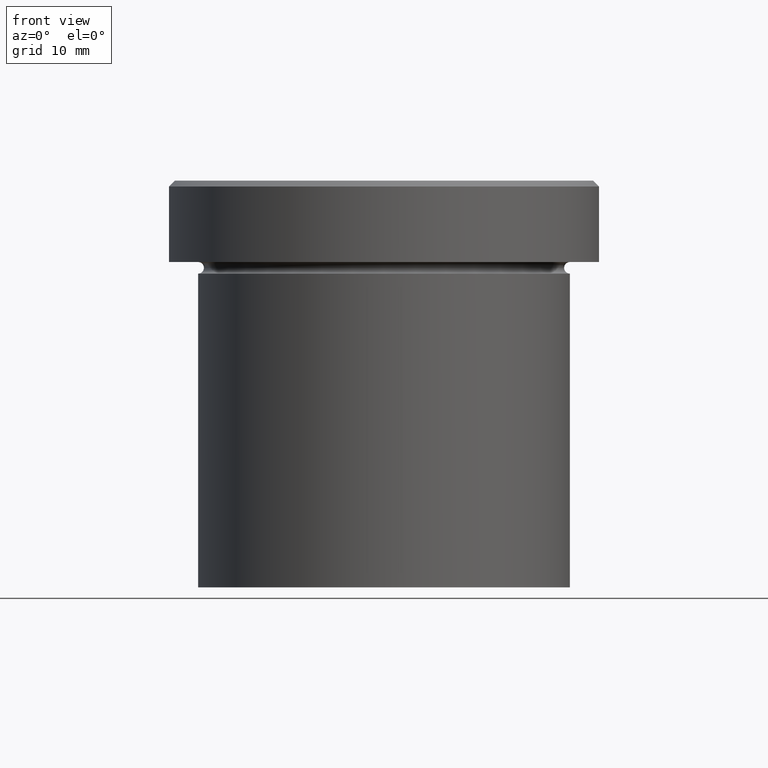
[diagram: clean part render]
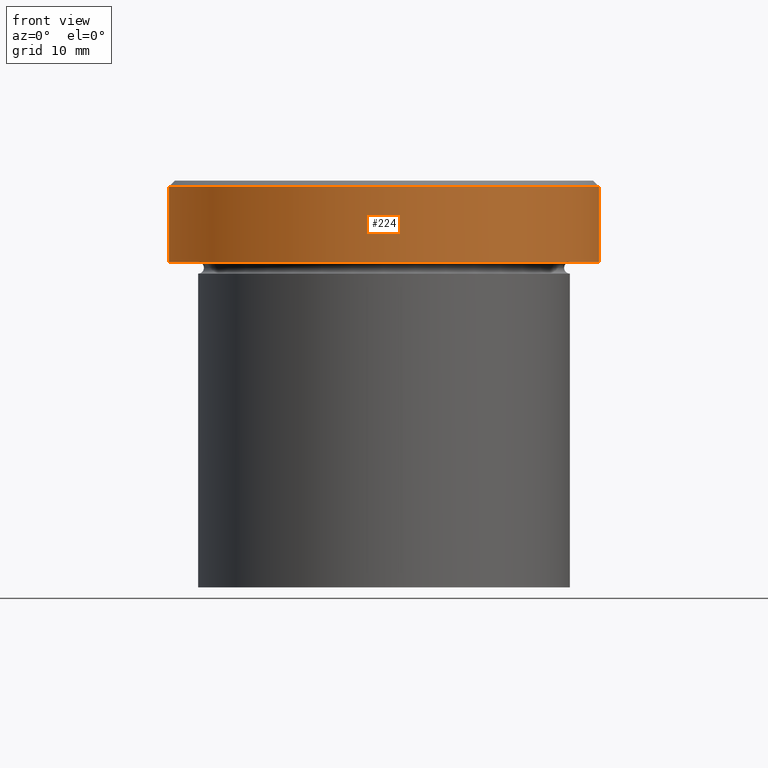
[diagram: same view with one face highlighted and labeled with its STEP entity id]
A machine part, front view. The second image highlights one B-rep face of the part: STEP entity #224.
In plain terms, the highlighted cylindrical surface (partial cylindrical patch) has radius 18.5 mm, axis along (-0, -0, 1).
Its self-contained STEP definition (entity closure, byte-faithful):
#8 = CARTESIAN_POINT ( 'NONE',  ( 18.50000000000000000, 0.000000000000000000, -0.4999999999999936162 ) ) ;
#13 = CIRCLE ( 'NONE', #188, 18.50000000000000000 ) ;
#15 = ORIENTED_EDGE ( 'NONE', *, *, #111, .F. ) ;
#18 = CARTESIAN_POINT ( 'NONE',  ( -18.50000000000000000, 2.265596578422603396E-15, -6.999999999999998224 ) ) ;
#28 = EDGE_CURVE ( 'NONE', #387, #161, #13, .T. ) ;
#38 = FACE_OUTER_BOUND ( 'NONE', #109, .T. ) ;
#55 = CARTESIAN_POINT ( 'NONE',  ( -18.50000000000000000, 2.265596578422603396E-15, 0.000000000000000000 ) ) ;
#67 = VECTOR ( 'NONE', #334, 1000.000000000000000 ) ;
#98 = DIRECTION ( 'NONE',  ( -0.000000000000000000, -0.000000000000000000, 1.000000000000000000 ) ) ;
#109 = EDGE_LOOP ( 'NONE', ( #15, #193, #394, #169 ) ) ;
#111 = EDGE_CURVE ( 'NONE', #139, #161, #114, .T. ) ;
#114 = LINE ( 'NONE', #55, #407 ) ;
#136 = AXIS2_PLACEMENT_3D ( 'NONE', #357, #98, #288 ) ;
#138 = LINE ( 'NONE', #302, #67 ) ;
#139 = VERTEX_POINT ( 'NONE', #18 ) ;
#155 = DIRECTION ( 'NONE',  ( 1.000000000000000000, 0.000000000000000000, 0.000000000000000000 ) ) ;
#159 = VERTEX_POINT ( 'NONE', #179 ) ;
#161 = VERTEX_POINT ( 'NONE', #379 ) ;
#169 = ORIENTED_EDGE ( 'NONE', *, *, #28, .T. ) ;
#178 = DIRECTION ( 'NONE',  ( -0.000000000000000000, -0.000000000000000000, 1.000000000000000000 ) ) ;
#179 = CARTESIAN_POINT ( 'NONE',  ( 18.50000000000000000, 0.000000000000000000, -6.999999999999998224 ) ) ;
#187 = EDGE_CURVE ( 'NONE', #139, #159, #392, .T. ) ;
#188 = AXIS2_PLACEMENT_3D ( 'NONE', #220, #280, #377 ) ;
#192 = DIRECTION ( 'NONE',  ( -0.000000000000000000, -0.000000000000000000, 1.000000000000000000 ) ) ;
#193 = ORIENTED_EDGE ( 'NONE', *, *, #187, .T. ) ;
#200 = CYLINDRICAL_SURFACE ( 'NONE', #336, 18.50000000000000000 ) ;
#220 = CARTESIAN_POINT ( 'NONE',  ( 0.000000000000000000, 0.000000000000000000, -0.4999999999999936162 ) ) ;
#224 = ADVANCED_FACE ( 'NONE', ( #38 ), #200, .T. ) ;
#280 = DIRECTION ( 'NONE',  ( 0.000000000000000000, 0.000000000000000000, -1.000000000000000000 ) ) ;
#288 = DIRECTION ( 'NONE',  ( 1.000000000000000000, 0.000000000000000000, 0.000000000000000000 ) ) ;
#302 = CARTESIAN_POINT ( 'NONE',  ( 18.50000000000000000, 0.000000000000000000, 0.000000000000000000 ) ) ;
#320 = CARTESIAN_POINT ( 'NONE',  ( 0.000000000000000000, 0.000000000000000000, 0.000000000000000000 ) ) ;
#333 = EDGE_CURVE ( 'NONE', #159, #387, #138, .T. ) ;
#334 = DIRECTION ( 'NONE',  ( -0.000000000000000000, -0.000000000000000000, 1.000000000000000000 ) ) ;
#336 = AXIS2_PLACEMENT_3D ( 'NONE', #320, #192, #155 ) ;
#357 = CARTESIAN_POINT ( 'NONE',  ( 0.000000000000000000, 0.000000000000000000, -6.999999999999998224 ) ) ;
#377 = DIRECTION ( 'NONE',  ( 1.000000000000000000, 0.000000000000000000, 0.000000000000000000 ) ) ;
#379 = CARTESIAN_POINT ( 'NONE',  ( -18.50000000000000000, 2.265596578422603396E-15, -0.4999999999999936162 ) ) ;
#387 = VERTEX_POINT ( 'NONE', #8 ) ;
#392 = CIRCLE ( 'NONE', #136, 18.50000000000000000 ) ;
#394 = ORIENTED_EDGE ( 'NONE', *, *, #333, .T. ) ;
#407 = VECTOR ( 'NONE', #178, 1000.000000000000000 ) ;